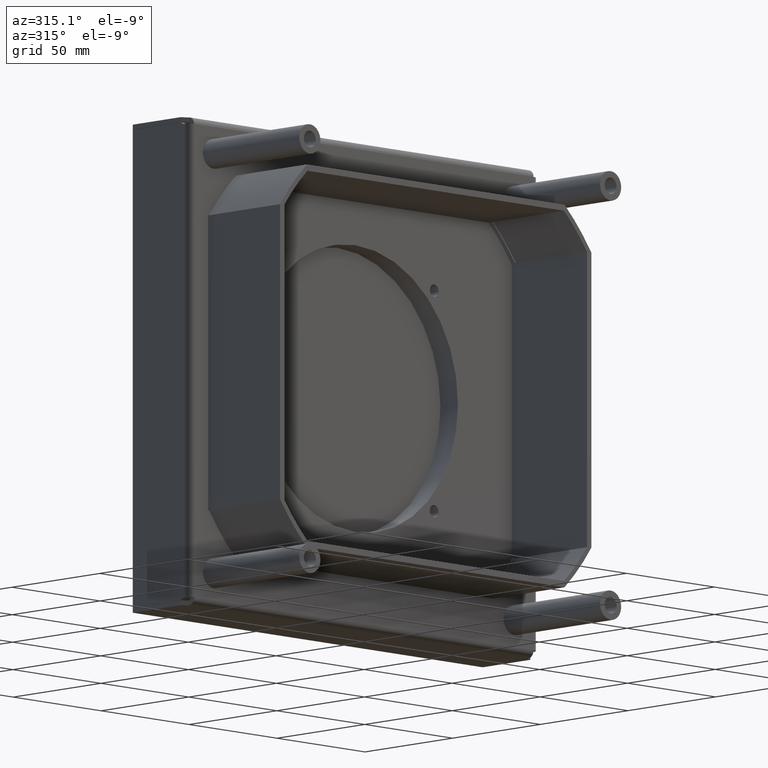
[diagram: clean part render]
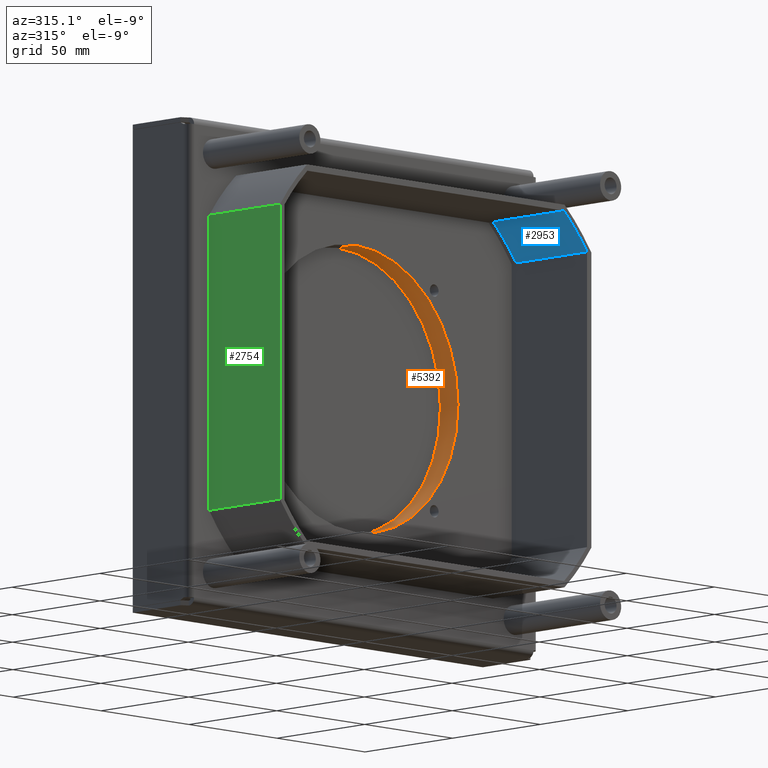
[diagram: same view with three faces highlighted in distinct colors, each labeled with its STEP entity id]
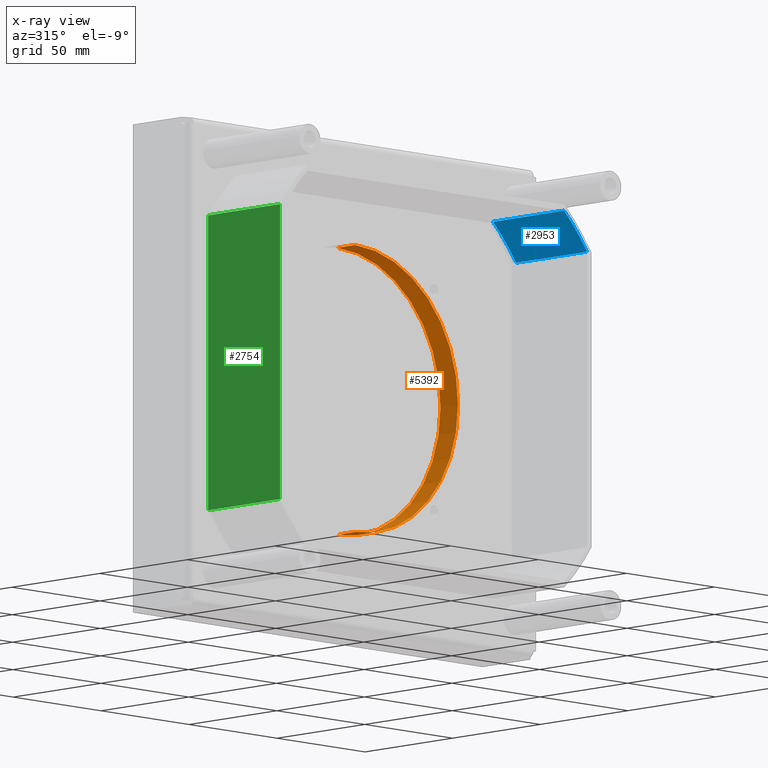
[diagram: x-ray of the same camera — body ghosted, the three highlighted faces saturated]
A machine part, auxiliary view with three faces highlighted in distinct colors.
The next image is the same camera in x-ray (body ghosted, the three faces saturated) — at least one of them is partly hidden behind the body in this view.
Their STEP definitions:

[orange] entity #5392 — the highlighted cylindrical surface (partial cylindrical patch) has radius 58.5 mm, axis along (0, -1, 0).
#5008=CARTESIAN_POINT('',(0.E0,0.E0,0.E0));
#5009=DIRECTION('',(0.E0,-1.E0,0.E0));
#5010=DIRECTION('',(1.E0,0.E0,0.E0));
#5011=AXIS2_PLACEMENT_3D('',#5008,#5009,#5010);
#5094=DIRECTION('',(0.E0,1.E0,0.E0));
#5095=VECTOR('',#5094,1.E1);
#5096=CARTESIAN_POINT('',(5.85E1,0.E0,0.E0));
#5097=LINE('',#5096,#5095);
#5098=DIRECTION('',(0.E0,1.E0,0.E0));
#5099=VECTOR('',#5098,1.E1);
#5100=CARTESIAN_POINT('',(-5.85E1,0.E0,0.E0));
#5101=LINE('',#5100,#5099);
#5102=CARTESIAN_POINT('',(0.E0,1.E1,0.E0));
#5103=DIRECTION('',(0.E0,-1.E0,0.E0));
#5104=DIRECTION('',(1.E0,0.E0,0.E0));
#5105=AXIS2_PLACEMENT_3D('',#5102,#5103,#5104);
#5252=CARTESIAN_POINT('',(5.85E1,0.E0,0.E0));
#5253=CARTESIAN_POINT('',(-5.85E1,0.E0,0.E0));
#5254=VERTEX_POINT('',#5252);
#5255=VERTEX_POINT('',#5253);
#5288=CARTESIAN_POINT('',(5.85E1,1.E1,0.E0));
#5289=CARTESIAN_POINT('',(-5.85E1,1.E1,0.E0));
#5290=VERTEX_POINT('',#5288);
#5291=VERTEX_POINT('',#5289);
#5378=CARTESIAN_POINT('',(0.E0,0.E0,0.E0));
#5379=DIRECTION('',(0.E0,1.E0,0.E0));
#5380=DIRECTION('',(1.E0,0.E0,0.E0));
#5381=AXIS2_PLACEMENT_3D('',#5378,#5379,#5380);
#5382=CYLINDRICAL_SURFACE('',#5381,5.85E1);
#5383=ORIENTED_EDGE('',*,*,#5371,.F.);
#5385=ORIENTED_EDGE('',*,*,#5384,.T.);
#5387=ORIENTED_EDGE('',*,*,#5386,.T.);
#5389=ORIENTED_EDGE('',*,*,#5388,.F.);
#5390=EDGE_LOOP('',(#5383,#5385,#5387,#5389));
#5391=FACE_OUTER_BOUND('',#5390,.F.);
#5012=CIRCLE('',#5011,5.85E1);
#5106=CIRCLE('',#5105,5.85E1);
#5371=EDGE_CURVE('',#5254,#5255,#5012,.T.);
#5384=EDGE_CURVE('',#5254,#5290,#5097,.T.);
#5386=EDGE_CURVE('',#5290,#5291,#5106,.T.);
#5388=EDGE_CURVE('',#5255,#5291,#5101,.T.);
#5392=ADVANCED_FACE('',(#5391),#5382,.F.);

[blue] entity #2953 — the highlighted cylindrical surface (partial cylindrical patch) has radius 105 mm, axis along (0, -1, 0).
#2208=CARTESIAN_POINT('',(0.E0,-4.1E1,0.E0));
#2209=DIRECTION('',(0.E0,1.E0,0.E0));
#2210=DIRECTION('',(-7.190476190476E-1,0.E0,6.949608057595E-1));
#2211=AXIS2_PLACEMENT_3D('',#2208,#2209,#2210);
#2362=DIRECTION('',(0.E0,-1.E0,0.E0));
#2363=VECTOR('',#2362,4.05E1);
#2364=CARTESIAN_POINT('',(-6.024118192732E1,-5.E-1,8.6E1));
#2365=LINE('',#2364,#2363);
#2411=CARTESIAN_POINT('',(0.E0,-5.E-1,0.E0));
#2412=DIRECTION('',(0.E0,-1.E0,0.E0));
#2413=DIRECTION('',(-5.737255421649E-1,0.E0,8.190476190476E-1));
#2414=AXIS2_PLACEMENT_3D('',#2411,#2412,#2413);
#2416=DIRECTION('',(0.E0,-1.E0,0.E0));
#2417=VECTOR('',#2416,4.05E1);
#2418=CARTESIAN_POINT('',(-7.55E1,-5.E-1,7.297088460475E1));
#2419=LINE('',#2418,#2417);
#2506=CARTESIAN_POINT('',(-7.55E1,-4.1E1,7.297088460475E1));
#2507=CARTESIAN_POINT('',(-6.024118192732E1,-4.1E1,8.6E1));
#2508=VERTEX_POINT('',#2506);
#2509=VERTEX_POINT('',#2507);
#2534=CARTESIAN_POINT('',(-6.024118192732E1,-5.E-1,8.6E1));
#2535=CARTESIAN_POINT('',(-7.55E1,-5.E-1,7.297088460475E1));
#2536=VERTEX_POINT('',#2534);
#2537=VERTEX_POINT('',#2535);
#2941=CARTESIAN_POINT('',(0.E0,0.E0,0.E0));
#2942=DIRECTION('',(0.E0,-1.E0,0.E0));
#2943=DIRECTION('',(1.E0,0.E0,0.E0));
#2944=AXIS2_PLACEMENT_3D('',#2941,#2942,#2943);
#2945=CYLINDRICAL_SURFACE('',#2944,1.05E2);
#2946=ORIENTED_EDGE('',*,*,#2932,.T.);
#2948=ORIENTED_EDGE('',*,*,#2947,.T.);
#2949=ORIENTED_EDGE('',*,*,#2697,.T.);
#2950=ORIENTED_EDGE('',*,*,#2874,.F.);
#2951=EDGE_LOOP('',(#2946,#2948,#2949,#2950));
#2952=FACE_OUTER_BOUND('',#2951,.F.);
#2212=CIRCLE('',#2211,1.05E2);
#2415=CIRCLE('',#2414,1.05E2);
#2697=EDGE_CURVE('',#2508,#2509,#2212,.T.);
#2874=EDGE_CURVE('',#2536,#2509,#2365,.T.);
#2932=EDGE_CURVE('',#2536,#2537,#2415,.T.);
#2947=EDGE_CURVE('',#2537,#2508,#2419,.T.);
#2953=ADVANCED_FACE('',(#2952),#2945,.F.);

[green] entity #2754 — the highlighted planar face has unit normal (-1, 0, 0).
#2262=DIRECTION('',(1.E0,0.E0,0.E0));
#2263=VECTOR('',#2262,1.202788426948E2);
#2264=CARTESIAN_POINT('',(-6.013942134740E1,-4.1E1,-8.85E1));
#2265=LINE('',#2264,#2263);
#2266=DIRECTION('',(-1.421085471520E-14,1.E0,-2.842170943040E-14));
#2267=VECTOR('',#2266,5.E-1);
#2268=CARTESIAN_POINT('',(6.013942134740E1,-5.E-1,-8.85E1));
#2269=LINE('',#2268,#2267);
#2270=DIRECTION('',(-1.E0,0.E0,0.E0));
#2271=VECTOR('',#2270,1.202788426948E2);
#2272=CARTESIAN_POINT('',(6.013942134740E1,0.E0,-8.85E1));
#2273=LINE('',#2272,#2271);
#2274=DIRECTION('',(2.842170943040E-14,1.E0,0.E0));
#2275=VECTOR('',#2274,5.E-1);
#2276=CARTESIAN_POINT('',(-6.013942134740E1,-5.E-1,-8.85E1));
#2277=LINE('',#2276,#2275);
#2283=DIRECTION('',(0.E0,-1.E0,0.E0));
#2284=VECTOR('',#2283,4.05E1);
#2285=CARTESIAN_POINT('',(6.013942134740E1,-5.E-1,-8.85E1));
#2286=LINE('',#2285,#2284);
#2465=DIRECTION('',(0.E0,-1.E0,0.E0));
#2466=VECTOR('',#2465,4.05E1);
#2467=CARTESIAN_POINT('',(-6.013942134740E1,-5.E-1,-8.85E1));
#2468=LINE('',#2467,#2466);
#2486=CARTESIAN_POINT('',(-6.013942134740E1,-4.1E1,-8.85E1));
#2488=VERTEX_POINT('',#2486);
#2510=CARTESIAN_POINT('',(6.013942134740E1,-4.1E1,-8.85E1));
#2512=VERTEX_POINT('',#2510);
#2522=CARTESIAN_POINT('',(-6.013942134740E1,-5.E-1,-8.85E1));
#2524=VERTEX_POINT('',#2522);
#2531=CARTESIAN_POINT('',(-6.013942134740E1,0.E0,-8.85E1));
#2533=VERTEX_POINT('',#2531);
#2570=CARTESIAN_POINT('',(6.013942134740E1,-5.E-1,-8.85E1));
#2572=VERTEX_POINT('',#2570);
#2579=CARTESIAN_POINT('',(6.013942134740E1,0.E0,-8.85E1));
#2581=VERTEX_POINT('',#2579);
#2738=CARTESIAN_POINT('',(0.E0,0.E0,-8.85E1));
#2739=DIRECTION('',(0.E0,0.E0,-1.E0));
#2740=DIRECTION('',(-1.E0,0.E0,0.E0));
#2741=AXIS2_PLACEMENT_3D('',#2738,#2739,#2740);
#2742=PLANE('',#2741);
#2743=ORIENTED_EDGE('',*,*,#2678,.T.);
#2745=ORIENTED_EDGE('',*,*,#2744,.F.);
#2746=ORIENTED_EDGE('',*,*,#2730,.T.);
#2747=ORIENTED_EDGE('',*,*,#2635,.T.);
#2749=ORIENTED_EDGE('',*,*,#2748,.F.);
#2751=ORIENTED_EDGE('',*,*,#2750,.T.);
#2752=EDGE_LOOP('',(#2743,#2745,#2746,#2747,#2749,#2751));
#2753=FACE_OUTER_BOUND('',#2752,.F.);
#2635=EDGE_CURVE('',#2581,#2533,#2273,.T.);
#2678=EDGE_CURVE('',#2488,#2512,#2265,.T.);
#2730=EDGE_CURVE('',#2572,#2581,#2269,.T.);
#2744=EDGE_CURVE('',#2572,#2512,#2286,.T.);
#2748=EDGE_CURVE('',#2524,#2533,#2277,.T.);
#2750=EDGE_CURVE('',#2524,#2488,#2468,.T.);
#2754=ADVANCED_FACE('',(#2753),#2742,.T.);